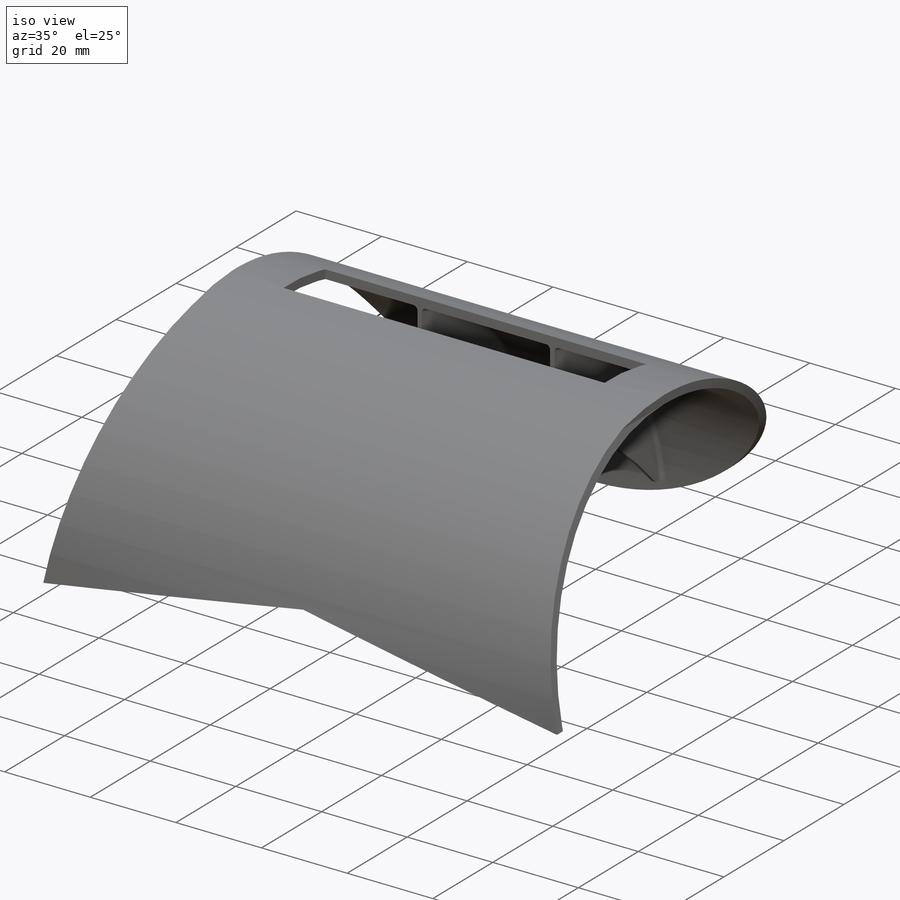
[diagram: iso view]
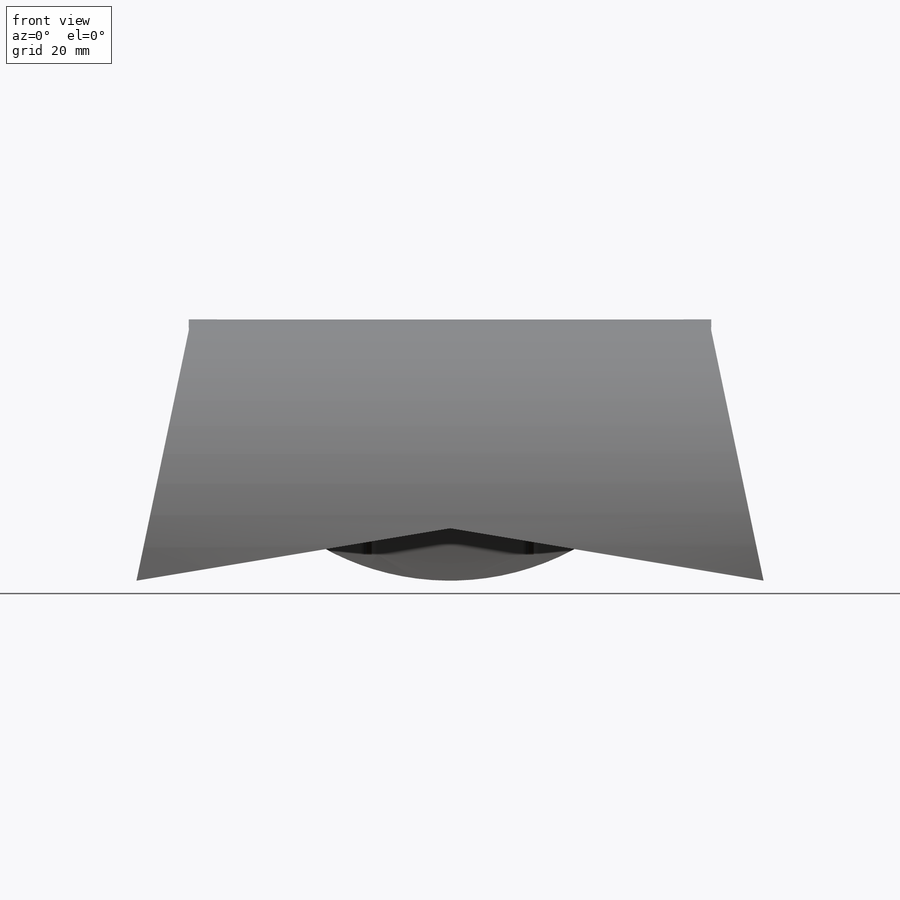
[diagram: front view]
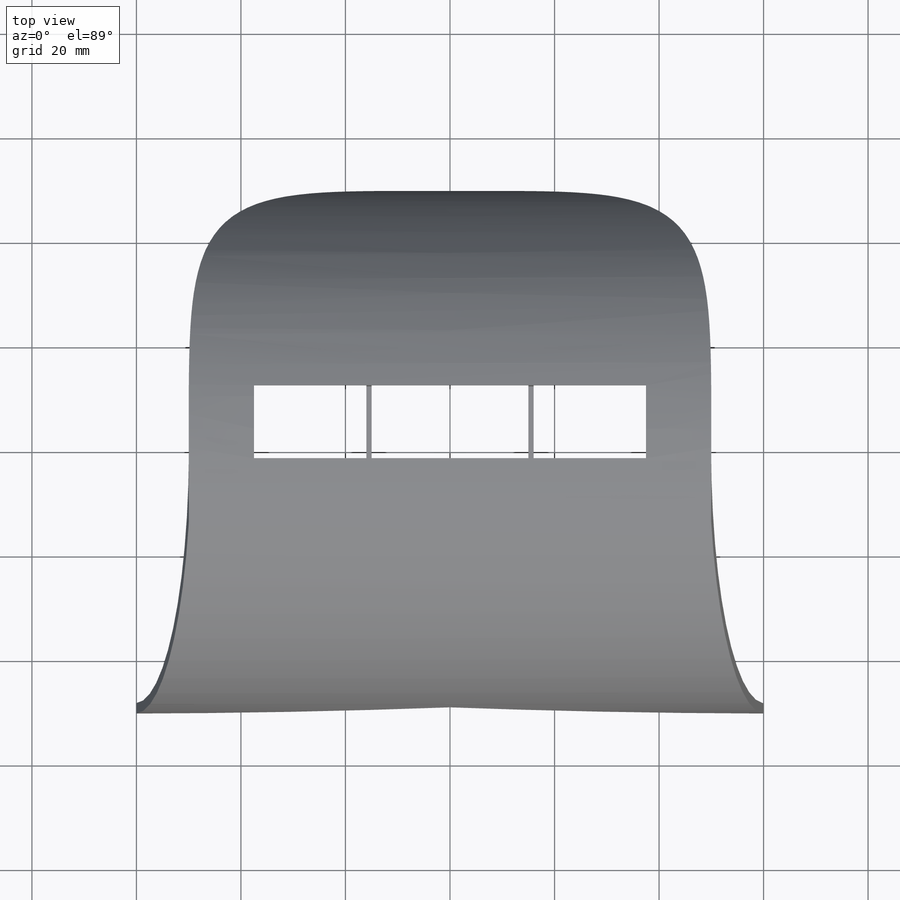
[diagram: top view]
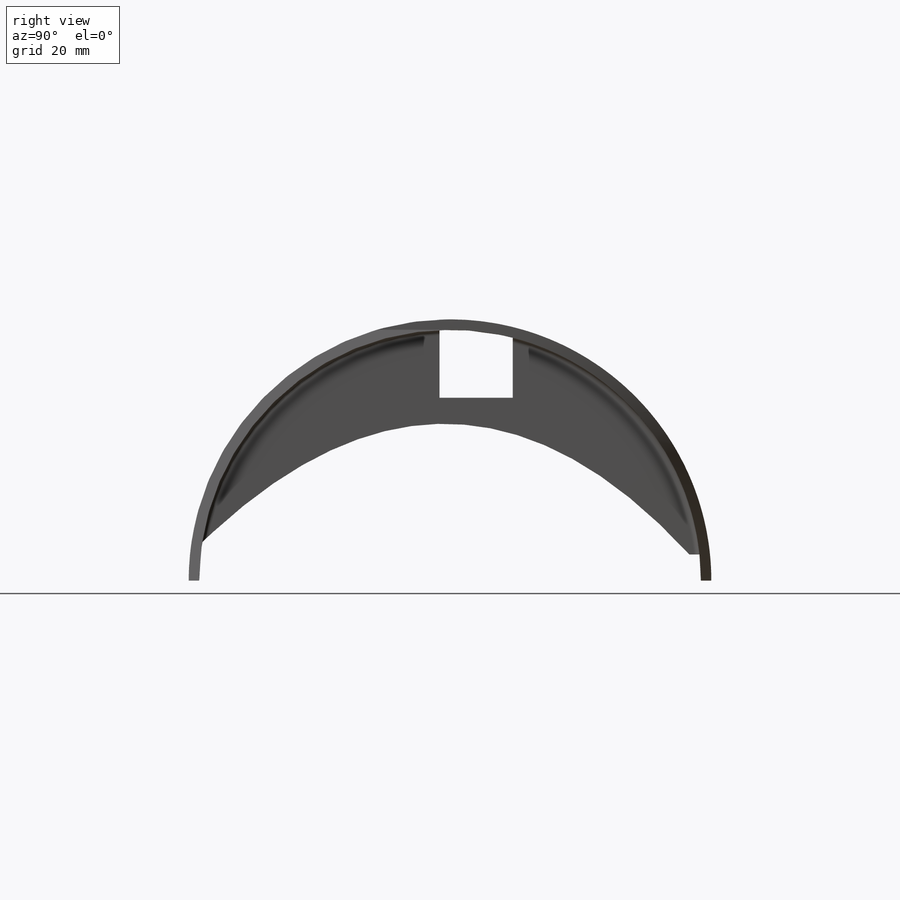
[diagram: right view]
SOLIDWORKS PART (.sldprt)
format: sldprt  version: not decoded by parser v0  size: 358,912 bytes
history: native  units: mm
features: sketch x8, cut_extrude x5, extrude x3, fillet x2, material x1 (+11 scaffold rows collapsed)
feature tree (30):
  scaffold x11  (default folders/planes/origin — collapsed)
  material  "ABS"
  sketch  "Sketch1"  dims[D1=100.0mm D2=96.0mm]
  extrude  "Boss-Extrude1"  Depth=120mm
  sketch  "Sketch2"  dims[D1=50.0mm]
  cut_extrude  "Cut-Extrude1"  Depth=120mm
  sketch  "Sketch7"  dims[D2=48.0mm D1=5.0mm]
  extrude  "Boss-Extrude2"  Depth=1mm
  extrude  "Boss-Extrude3"  [1 undecoded]
  sketch  "Sketch7<2>"  dims[D1=1.0mm D19=75.0mm]
  sketch  "Sketch3"  dims[c1.D1=100.0mm c1.D2=50.0mm c1.D3=5.0mm c1.D4=5.0mm c1.D5=~21.277757mm c1.D6=~57.539467mm c2.D2=10.0mm c2.D3=10.0mm c2.D4=55.0mm]
  cut_extrude  "Cut-Extrude4"  Depth=50mm
  sketch  "Sketch4"  dims[D1=15.0mm D2=15.0mm D3=55.0mm D4=10.0mm D5=60.0mm D6=100.0mm D7=55.0mm]
  cut_extrude  "Cut-Extrude5"  Depth=50mm
  sketch  "Sketch11"  dims[D1=30.0mm D2=~10.048024mm D3=~95.36445mm D4=~7.418901mm D5=~47.436507mm]
  cut_extrude  "Cut-Extrude6"  Depth=120mm
  sketch  "Sketch12"  dims[D1=75.0mm D2=14.0mm D3=22.5mm D4=2.0mm]
  cut_extrude  "Cut-Extrude7"  Depth=50mm
  fillet  "Fillet1"  Radius=1mm
  fillet  "Fillet2"  Radius=1mm
decode coverage: 17 of 18 modeling features carry decoded parameters
note: ~ marks probable driven/reference dimensions
note: 1 parameter value undecoded
note: suppression state not decoded; provenance and decode notes live in map.json
